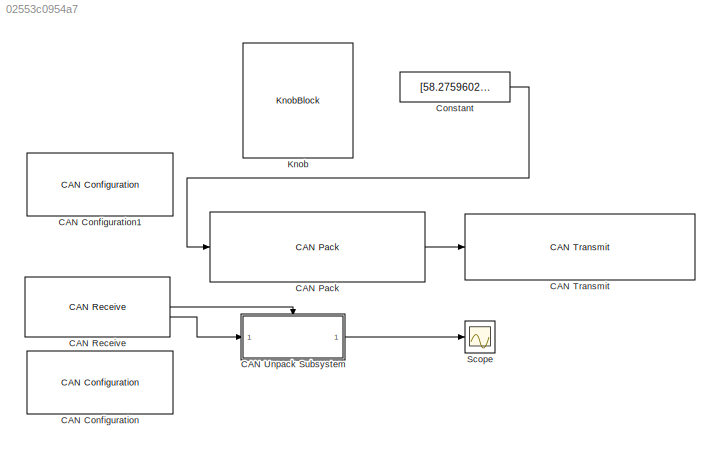
MODEL slx_02553c0954a7
KIND model
CONFIG AbsTol = auto
CONFIG EnableMultiTasking = off
CONFIG FixedStep = auto
CONFIG MaxStep = auto
CONFIG MinStep = auto
CONFIG RelTol = 1e-3
CONFIG SampleTimeConstraint = Unconstrained
CONFIG SolverName = FixedStepDiscrete
CONFIG StartTime = 0.0
CONFIG StopTime = 10.0
BLOCK [Reference] CAN Configuration  REF=canlib/CAN Configuration
  SourceBlock = canlib/CAN Configuration
  SourceType = CAN Configuration
BLOCK [Reference] CAN Configuration1  REF=canlib/CAN Configuration
  SourceBlock = canlib/CAN Configuration
  SourceType = CAN Configuration
BLOCK [Reference] CAN Pack  REF=canmsglib/CAN Pack
  LibrarySourceBlock = canlib/CAN Pack
  SourceBlock = canmsglib/CAN Pack
  SourceType = CAN Pack
BLOCK [Reference] CAN Receive  REF=canlib/CAN Receive
  SourceBlock = canlib/CAN Receive
  SourceType = CAN Receive
BLOCK [Reference] CAN Transmit  REF=canlib/CAN Transmit
  SourceBlock = canlib/CAN Transmit
  SourceType = CAN Transmit
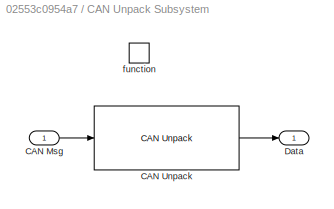
BLOCK [SubSystem] CAN Unpack Subsystem
  TreatAsAtomicUnit = on
BLOCK [Inport] CAN Unpack Subsystem/CAN Msg
BLOCK [Reference] CAN Unpack Subsystem/CAN Unpack  REF=canmsglib/CAN Unpack
  LibrarySourceBlock = canlib/CAN Unpack
  SourceBlock = canmsglib/CAN Unpack
  SourceType = CAN Unpack
BLOCK [Outport] CAN Unpack Subsystem/Data
BLOCK [TriggerPort] CAN Unpack Subsystem/function
  StatesWhenEnabling = held
  TriggerType = function-call
  VariantControl = (inherit)
BLOCK [Constant] Constant
  OutDataTypeStr = uint8
  SampleTime = 0.01
  Value = [58.27596028645834,2,3,4,5,6,7,8]
BLOCK [KnobBlock] Knob
BLOCK [Scope] Scope
  Floating = off
  NumInputPorts = 1
  ScopeSpecificationString = Simulink.scopes.TimeScopeBlockCfg('CurrentConfiguration', extmgr.ConfigurationSet(extmgr.Configuration('Core','General UI',true),extmgr.Configuration('Core','Source UI',true),extmgr.Configuration('Sources','WiredSimulink',true),extmgr.Configuration('Visuals','Time Domain',true,'SerializedDisplays',{struct('MinYLimReal','-7.25','MaxYLimReal','65.25','YLabelReal','','MinYLimMag','0.00000','MaxYLimMa...<+1558ch>
LINE CAN Pack:1 -> CAN Transmit:1
LINE CAN Receive:1 -> CAN Unpack Subsystem:trigger
LINE CAN Receive:2 -> CAN Unpack Subsystem:1
LINE CAN Unpack Subsystem/CAN Msg:1 -> CAN Unpack Subsystem/CAN Unpack:1
LINE CAN Unpack Subsystem/CAN Unpack:1 -> CAN Unpack Subsystem/Data:1
LINE CAN Unpack Subsystem:1 -> Scope:1
LINE Constant:1 -> CAN Pack:1
